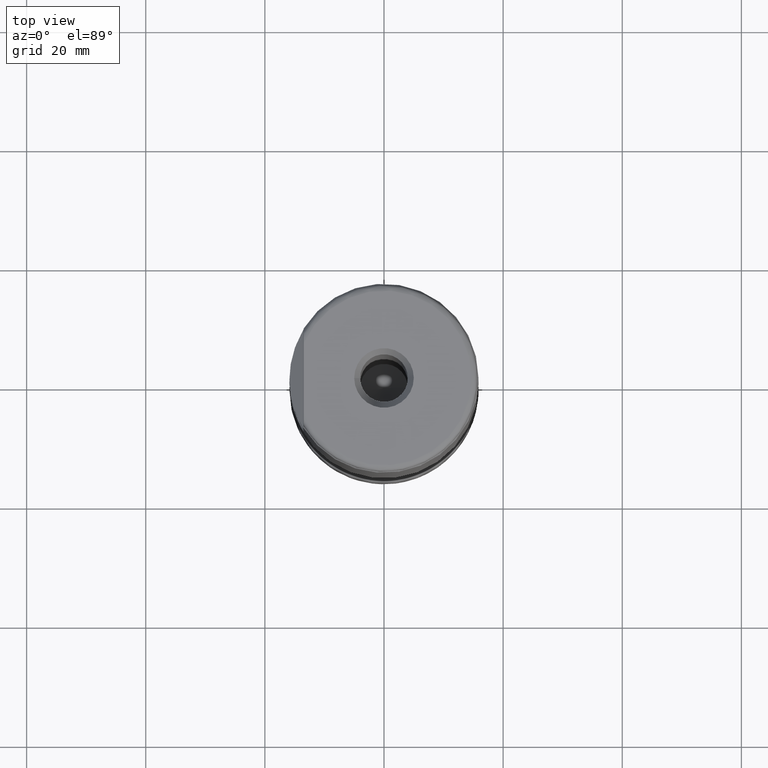
[diagram: clean part render]
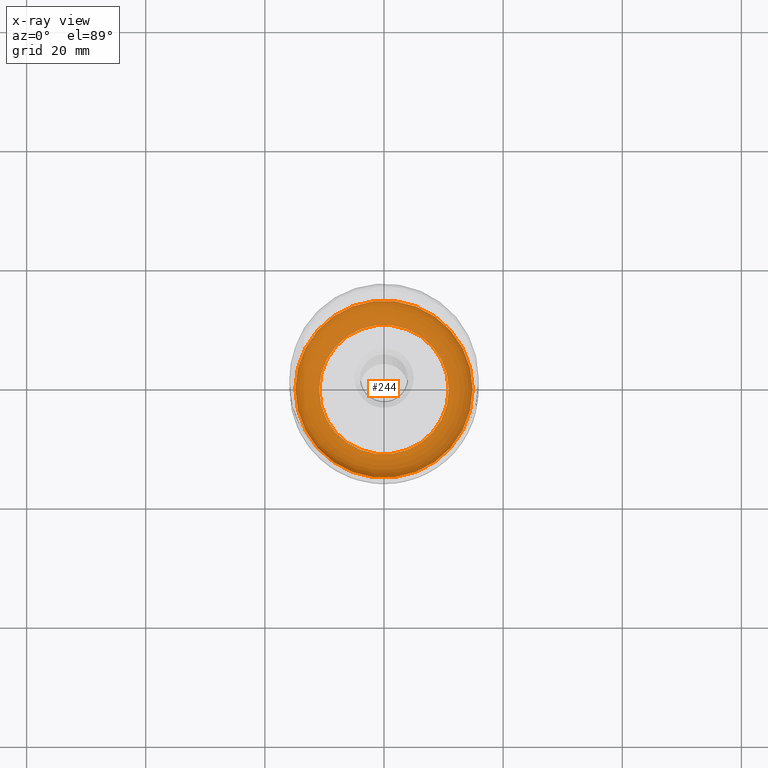
[diagram: x-ray — body ghosted, one internal face saturated and labeled with its STEP entity id]
A machine part, top view, then the same camera in x-ray: the body is ghosted and one INTERNAL B-rep face — a face not visible from any outside direction — is saturated and labeled: STEP entity #244.
In plain terms, the highlighted toroidal blend (fillet) surface has major radius 10.875 mm and minor (blend) radius 4 mm.
Its self-contained STEP definition (entity closure, byte-faithful):
#204=TOROIDAL_SURFACE('',#1022,10.875,4.);
#244=ADVANCED_FACE('',(#343,#344),#204,.T.);
#343=FACE_BOUND('',#457,.T.);
#344=FACE_BOUND('',#458,.T.);
#457=EDGE_LOOP('',(#617));
#458=EDGE_LOOP('',(#618));
#617=ORIENTED_EDGE('',*,*,#792,.F.);
#618=ORIENTED_EDGE('',*,*,#794,.F.);
#718=VERTEX_POINT('',#1737);
#720=VERTEX_POINT('',#1759);
#792=EDGE_CURVE('',#718,#718,#853,.T.);
#794=EDGE_CURVE('',#720,#720,#854,.T.);
#853=CIRCLE('',#1000,10.875);
#854=CIRCLE('',#1002,14.875);
#1000=AXIS2_PLACEMENT_3D('',#1736,#1091,#1092);
#1002=AXIS2_PLACEMENT_3D('',#1758,#1095,#1096);
#1022=AXIS2_PLACEMENT_3D('',#2123,#1142,#1143);
#1091=DIRECTION('',(-1.17145536458252E-15,0.,-1.));
#1092=DIRECTION('',(1.,0.,-1.17642166761645E-15));
#1095=DIRECTION('',(1.17145536458252E-15,0.,1.));
#1096=DIRECTION('',(1.,0.,-1.16620065611886E-15));
#1142=DIRECTION('',(1.17145536458252E-15,0.,1.));
#1143=DIRECTION('',(1.,0.,-1.16620065611886E-15));
#1736=CARTESIAN_POINT('',(1.52289197395728E-15,0.,1.3));
#1737=CARTESIAN_POINT('',(10.875,0.,1.29999999999999));
#1758=CARTESIAN_POINT('',(6.20871343228738E-15,0.,5.3));
#1759=CARTESIAN_POINT('',(14.875,0.,5.29999999999998));
#2123=CARTESIAN_POINT('',(6.20871343228738E-15,0.,5.3));